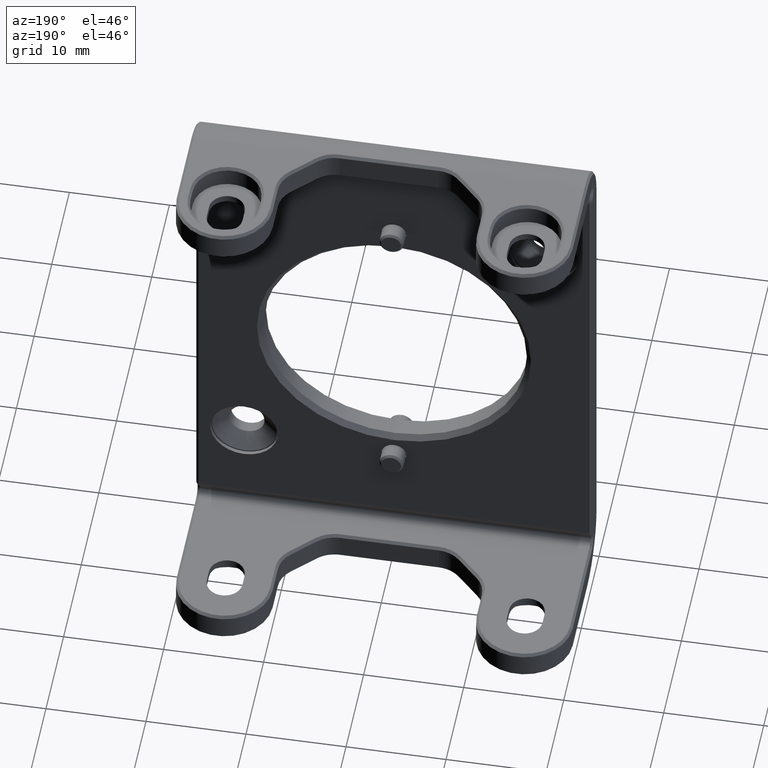
[diagram: clean part render]
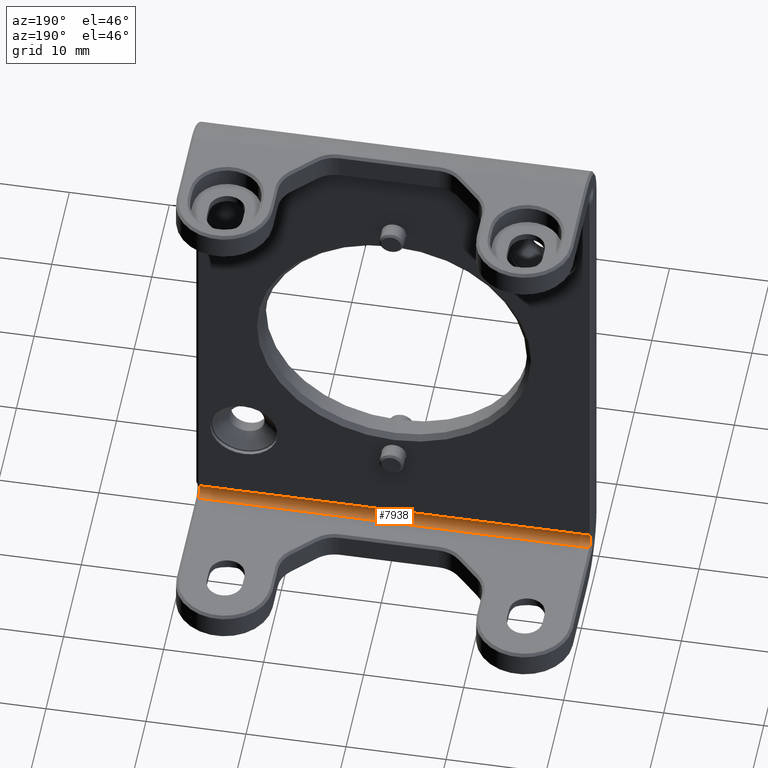
[diagram: same view with one face highlighted and labeled with its STEP entity id]
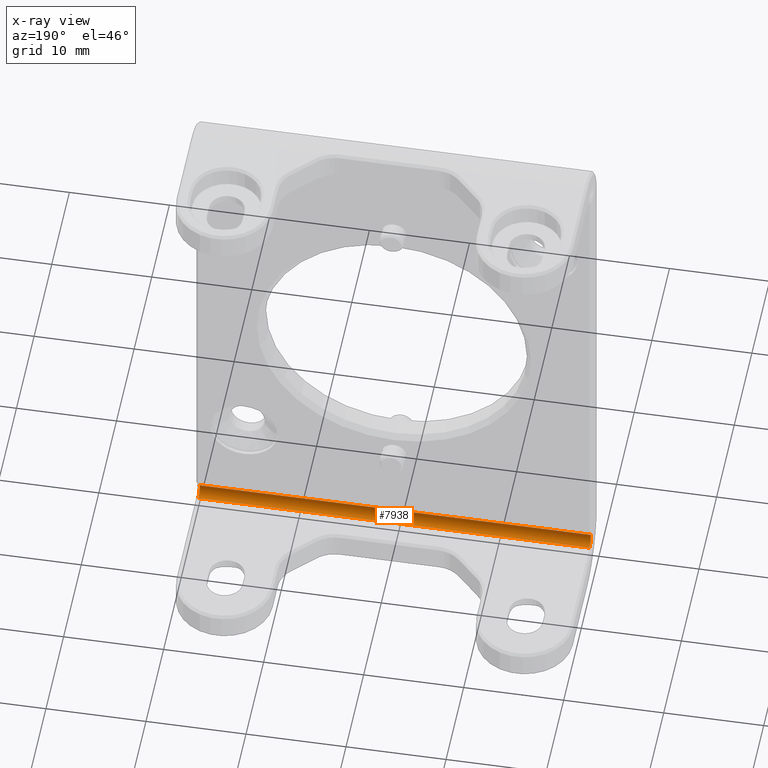
[diagram: x-ray of the same camera — body ghosted, the highlighted face saturated]
A machine part, auxiliary view. The second image highlights one B-rep face of the part: STEP entity #7938.
The next image is the same camera in x-ray: the body ghosted, the highlighted face saturated — about 0% of this face is hidden behind the body in this view.
In plain terms, the highlighted cylindrical surface (edge-blend (fillet) strip) has radius 0.75 mm, axis along (1, -0, -0).
Its self-contained STEP definition (entity closure, byte-faithful):
#515 = ORIENTED_EDGE ( 'NONE', *, *, #6680, .T. ) ;
#545 = DIRECTION ( 'NONE',  ( 1.000000000000000000, -0.000000000000000000, -0.000000000000000000 ) ) ;
#601 = EDGE_CURVE ( 'NONE', #7384, #4056, #4037, .T. ) ;
#726 = EDGE_LOOP ( 'NONE', ( #515, #3593, #6541, #8094 ) ) ;
#1085 = DIRECTION ( 'NONE',  ( 0.000000000000000000, 0.000000000000000000, 1.000000000000000000 ) ) ;
#1416 = AXIS2_PLACEMENT_3D ( 'NONE', #8581, #3145, #1085 ) ;
#1505 = CARTESIAN_POINT ( 'NONE',  ( -19.80000000000000071, 2.371428571428565224, -24.08451114501378143 ) ) ;
#2996 = EDGE_CURVE ( 'NONE', #5710, #7384, #7921, .T. ) ;
#3108 = CARTESIAN_POINT ( 'NONE',  ( -19.54999999999999361, 2.799999999999994937, -25.44999999999999929 ) ) ;
#3145 = DIRECTION ( 'NONE',  ( -1.000000000000000000, -0.000000000000000000, -0.000000000000000000 ) ) ;
#3381 = VECTOR ( 'NONE', #7680, 1000.000000000000000 ) ;
#3519 = CYLINDRICAL_SURFACE ( 'NONE', #6458, 0.7500000000000006661 ) ;
#3593 = ORIENTED_EDGE ( 'NONE', *, *, #2996, .T. ) ;
#4037 = LINE ( 'NONE', #1505, #3381 ) ;
#4056 = VERTEX_POINT ( 'NONE', #5999 ) ;
#4167 = AXIS2_PLACEMENT_3D ( 'NONE', #6962, #8294, #8199 ) ;
#4180 = CARTESIAN_POINT ( 'NONE',  ( 19.55000000000000782, 2.799999999999994937, -25.44999999999999929 ) ) ;
#4278 = EDGE_CURVE ( 'NONE', #4056, #5989, #6123, .T. ) ;
#4553 = DIRECTION ( 'NONE',  ( 0.000000000000000000, 0.000000000000000000, -1.000000000000000000 ) ) ;
#4902 = CARTESIAN_POINT ( 'NONE',  ( 19.80000000000000071, 2.799999999999994937, -25.44999999999999929 ) ) ;
#5710 = VERTEX_POINT ( 'NONE', #3108 ) ;
#5989 = VERTEX_POINT ( 'NONE', #4180 ) ;
#5999 = CARTESIAN_POINT ( 'NONE',  ( 19.54999999999999361, 2.371428571428565224, -24.08451114501378143 ) ) ;
#6011 = CARTESIAN_POINT ( 'NONE',  ( -19.55000000000000782, 2.371428571428565224, -24.08451114501378143 ) ) ;
#6123 = CIRCLE ( 'NONE', #4167, 0.7500000000000006661 ) ;
#6410 = DIRECTION ( 'NONE',  ( -1.000000000000000000, -0.000000000000000000, -0.000000000000000000 ) ) ;
#6458 = AXIS2_PLACEMENT_3D ( 'NONE', #8604, #545, #4553 ) ;
#6541 = ORIENTED_EDGE ( 'NONE', *, *, #601, .T. ) ;
#6653 = LINE ( 'NONE', #4902, #7698 ) ;
#6680 = EDGE_CURVE ( 'NONE', #5989, #5710, #6653, .T. ) ;
#6962 = CARTESIAN_POINT ( 'NONE',  ( 19.55000000000000782, 2.799999999999994937, -24.69999999999999929 ) ) ;
#7384 = VERTEX_POINT ( 'NONE', #6011 ) ;
#7680 = DIRECTION ( 'NONE',  ( 1.000000000000000000, -0.000000000000000000, -0.000000000000000000 ) ) ;
#7698 = VECTOR ( 'NONE', #6410, 1000.000000000000000 ) ;
#7778 = FACE_OUTER_BOUND ( 'NONE', #726, .T. ) ;
#7921 = CIRCLE ( 'NONE', #1416, 0.7500000000000006661 ) ;
#7938 = ADVANCED_FACE ( 'NONE', ( #7778 ), #3519, .F. ) ;
#8094 = ORIENTED_EDGE ( 'NONE', *, *, #4278, .T. ) ;
#8199 = DIRECTION ( 'NONE',  ( 0.000000000000000000, 1.156482317317870344E-15, 1.000000000000000000 ) ) ;
#8294 = DIRECTION ( 'NONE',  ( 1.000000000000000000, 0.000000000000000000, 0.000000000000000000 ) ) ;
#8581 = CARTESIAN_POINT ( 'NONE',  ( -19.55000000000000782, 2.799999999999994937, -24.69999999999999929 ) ) ;
#8604 = CARTESIAN_POINT ( 'NONE',  ( -19.80000000000000071, 2.799999999999994937, -24.69999999999999929 ) ) ;